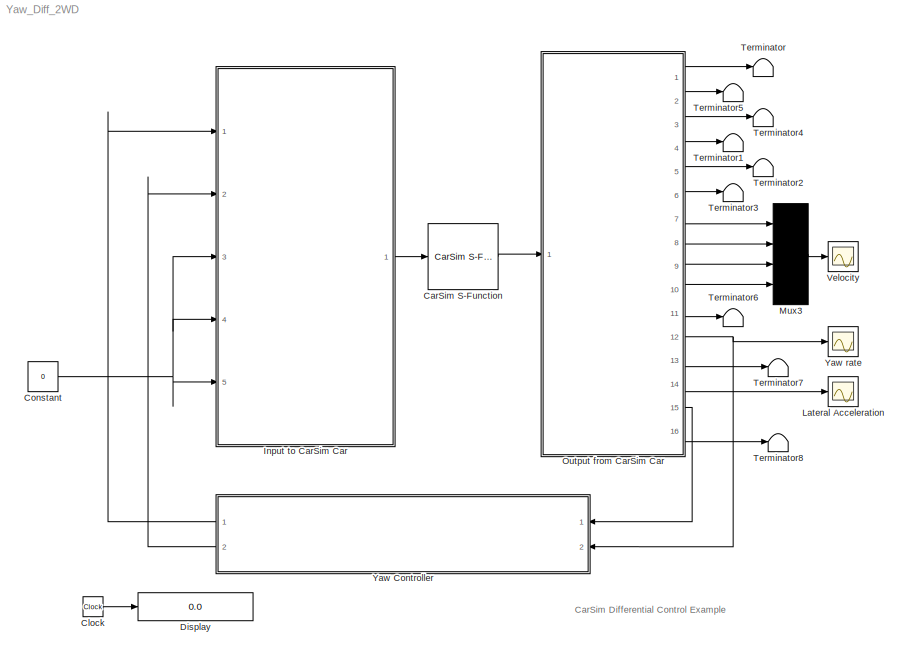
MODEL Yaw_Diff_2WD
KIND model
BLOCK [Reference] CarSim S-Function  REF=Solver_SF/CarSim S-Function
  Ports = [1, 1]
  Priority = 1
  Run_RTs = off
  SID = 1
  SIMFILE = simfile.sim
  SourceBlock = Solver_SF/CarSim S-Function
  SourceType = Vehicle math model library
  StopMode_ind = Vehicle Model
  vs_state_ind = Run
BLOCK [Clock] Clock
  SID = 2
BLOCK [Constant] Constant
  SID = 3
  Value = 0
BLOCK [Display] Display
  Decimation = 100
  Format = bank
  Ports = [1]
  SID = 4
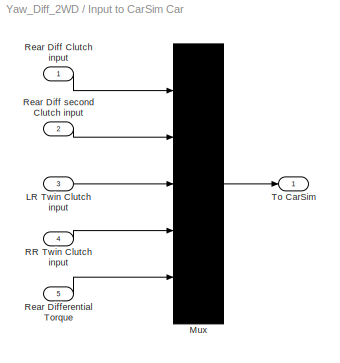
BLOCK [SubSystem] Input to CarSim Car
  FunctionWithSeparateData = off
  MaskHideContents = off
  MinAlgLoopOccurrences = off
  Opaque = off
  Ports = [5, 1]
  PropExecContextOutsideSubsystem = off
  RTWSystemCode = Auto
  RequestExecContextInheritance = off
  SID = 5
  Variant = off
BLOCK [Inport] Input to CarSim Car/LR Twin Clutch input
  IconDisplay = Port number
  Port = 3
  SID = 14
BLOCK [Mux] Input to CarSim Car/Mux
  Inputs = 5
  Ports = [5, 1]
  SID = 19
BLOCK [Inport] Input to CarSim Car/RR Twin Clutch input
  IconDisplay = Port number
  Port = 4
  SID = 15
BLOCK [Inport] Input to CarSim Car/Rear Diff Clutch input
  IconDisplay = Port number
  SID = 10
BLOCK [Inport] Input to CarSim Car/Rear Diff second Clutch input
  IconDisplay = Port number
  Port = 2
  SID = 11
BLOCK [Inport] Input to CarSim Car/Rear Differential Torque
  IconDisplay = Port number
  Port = 5
  SID = 18
BLOCK [Outport] Input to CarSim Car/To CarSim
  IconDisplay = Port number
  SID = 20
BLOCK [Scope] Lateral Acceleration
  DataFormat = Array
  Decimation = 1
  Grid = on
  LimitDataPoints = off
  MaxDataPoints = 5000
  NumInputPorts = 1
  Ports = [1]
  SID = 21
  SampleInput = off
  SampleTime = -1
  SaveName = ScopeData
  SaveToWorkspace = off
  TickLabels = on
  TimeRange = auto
  YMax = 1
  YMin = -0.5
  ZoomMode = on
BLOCK [Mux] Mux3
  Ports = [4, 1]
  SID = 24
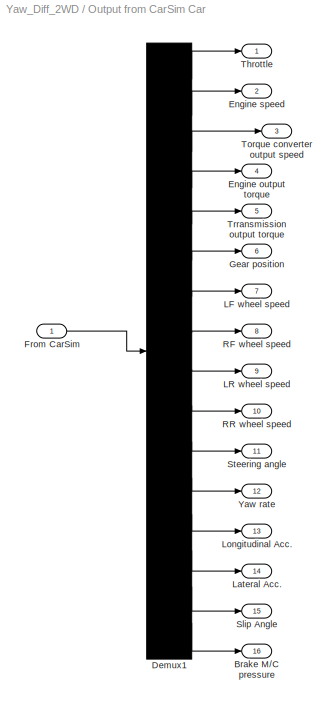
BLOCK [SubSystem] Output from CarSim Car
  FunctionWithSeparateData = off
  MaskHideContents = off
  MinAlgLoopOccurrences = off
  Opaque = off
  Ports = [1, 16]
  PropExecContextOutsideSubsystem = off
  RTWSystemCode = Auto
  RequestExecContextInheritance = off
  SID = 25
  Variant = off
BLOCK [Outport] Output from CarSim Car/Brake M//C pressure
  IconDisplay = Port number
  Port = 16
  SID = 43
BLOCK [Demux] Output from CarSim Car/Demux1
  Outputs = 16
  Ports = [1, 16]
  SID = 27
BLOCK [Outport] Output from CarSim Car/Engine output torque
  IconDisplay = Port number
  Port = 4
  SID = 31
BLOCK [Outport] Output from CarSim Car/Engine speed
  IconDisplay = Port number
  Port = 2
  SID = 29
BLOCK [Inport] Output from CarSim Car/From CarSim
  IconDisplay = Port number
  SID = 26
BLOCK [Outport] Output from CarSim Car/Gear position
  IconDisplay = Port number
  Port = 6
  SID = 33
BLOCK [Outport] Output from CarSim Car/LF wheel speed
  IconDisplay = Port number
  Port = 7
  SID = 34
BLOCK [Outport] Output from CarSim Car/LR wheel speed
  IconDisplay = Port number
  Port = 9
  SID = 36
BLOCK [Outport] Output from CarSim Car/Lateral Acc.
  IconDisplay = Port number
  Port = 14
  SID = 41
BLOCK [Outport] Output from CarSim Car/Longitudinal Acc.
  IconDisplay = Port number
  Port = 13
  SID = 40
BLOCK [Outport] Output from CarSim Car/RF wheel speed
  IconDisplay = Port number
  Port = 8
  SID = 35
BLOCK [Outport] Output from CarSim Car/RR wheel speed
  IconDisplay = Port number
  Port = 10
  SID = 37
BLOCK [Outport] Output from CarSim Car/Slip Angle
  IconDisplay = Port number
  Port = 15
  SID = 42
BLOCK [Outport] Output from CarSim Car/Steering angle
  IconDisplay = Port number
  Port = 11
  SID = 38
BLOCK [Outport] Output from CarSim Car/Throttle
  IconDisplay = Port number
  SID = 28
BLOCK [Outport] Output from CarSim Car/Torque converter output speed
  IconDisplay = Port number
  Port = 3
  SID = 30
BLOCK [Outport] Output from CarSim Car/Trransmission output torque
  IconDisplay = Port number
  Port = 5
  SID = 32
BLOCK [Outport] Output from CarSim Car/Yaw rate
  IconDisplay = Port number
  Port = 12
  SID = 39
BLOCK [Terminator] Terminator
  SID = 44
BLOCK [Terminator] Terminator1
  SID = 45
BLOCK [Terminator] Terminator2
  SID = 46
BLOCK [Terminator] Terminator3
  SID = 47
BLOCK [Terminator] Terminator4
  SID = 48
BLOCK [Terminator] Terminator5
  SID = 49
BLOCK [Terminator] Terminator6
  SID = 50
BLOCK [Terminator] Terminator7
  SID = 51
BLOCK [Terminator] Terminator8
  SID = 52
BLOCK [Scope] Velocity
  DataFormat = Array
  Decimation = 1
  Grid = on
  LimitDataPoints = off
  MaxDataPoints = 5000
  NumInputPorts = 1
  Ports = [1]
  SID = 53
  SampleInput = off
  SampleTime = -1
  SaveName = ScopeData
  SaveToWorkspace = off
  TickLabels = on
  TimeRange = auto
  YMax = 160
  YMin = 80
  ZoomMode = on
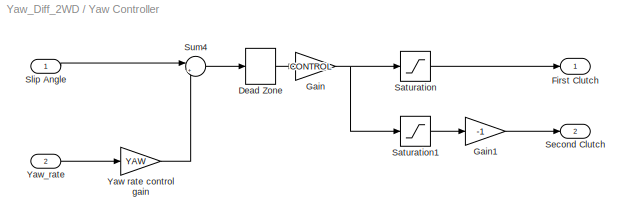
BLOCK [SubSystem] Yaw Controller
  FunctionWithSeparateData = off
  MaskCallbackString = |
  MaskEnableString = on,on
  MaskHideContents = off
  MaskIconFrame = on
  MaskIconOpaque = on
  MaskIconRotate = none
  MaskIconUnits = autoscale
  MaskPortRotate = default
  MaskPromptString = Yaw Control Gain (-)|Control Gain (-)
  MaskStyleString = edit,edit
  MaskToolTipString = on,on
  MaskTunableValueString = on,on
  MaskValueString = 0.06|0.72
  MaskVariables = YAW=@1;CONTROL=@2;
  MaskVisibilityString = on,on
  MinAlgLoopOccurrences = off
  Opaque = off
  Ports = [2, 2]
  PropExecContextOutsideSubsystem = off
  RTWSystemCode = Auto
  RequestExecContextInheritance = off
  SID = 54
  Variant = off
BLOCK [DeadZone] Yaw Controller/Dead Zone
  SID = 57
BLOCK [Outport] Yaw Controller/First Clutch
  IconDisplay = Port number
  SID = 64
BLOCK [Gain] Yaw Controller/Gain
  Gain = CONTROL
  SID = 58
BLOCK [Gain] Yaw Controller/Gain1
  Gain = -1
  SID = 59
BLOCK [Saturate] Yaw Controller/Saturation
  InputPortMap = u0
  LowerLimit = 0
  Ports = [1, 1]
  SID = 60
  UpperLimit = 1
BLOCK [Saturate] Yaw Controller/Saturation1
  InputPortMap = u0
  LowerLimit = -1
  Ports = [1, 1]
  SID = 61
  UpperLimit = 0
BLOCK [Outport] Yaw Controller/Second Clutch
  IconDisplay = Port number
  Port = 2
  SID = 65
BLOCK [Inport] Yaw Controller/Slip Angle
  IconDisplay = Port number
  SID = 55
BLOCK [Sum] Yaw Controller/Sum4
  IconShape = round
  Inputs = |+-
  Ports = [2, 1]
  SID = 62
BLOCK [Gain] Yaw Controller/Yaw rate control gain
  Gain = YAW
  SID = 63
BLOCK [Inport] Yaw Controller/Yaw_rate
  IconDisplay = Port number
  Port = 2
  SID = 56
BLOCK [Scope] Yaw rate
  DataFormat = Array
  Decimation = 1
  Grid = on
  LimitDataPoints = off
  MaxDataPoints = 5000
  NumInputPorts = 1
  Ports = [1]
  SID = 66
  SampleInput = off
  SampleTime = -1
  SaveName = ScopeData
  SaveToWorkspace = off
  TickLabels = on
  TimeRange = auto
  YMax = 20
  YMin = -20
  ZoomMode = on
ANNOTATION (root): CarSim Differential Control Example
LINE CarSim S-Function:1 -> Output from CarSim Car:1
LINE Clock:1 -> Display:1
NET Constant:1 -> Input to CarSim Car:3, Input to CarSim Car:4, Input to CarSim Car:5
LINE Input to CarSim Car/LR Twin Clutch input:1 -> Input to CarSim Car/Mux:3
LINE Input to CarSim Car/Mux:1 -> Input to CarSim Car/To CarSim:1
LINE Input to CarSim Car/RR Twin Clutch input:1 -> Input to CarSim Car/Mux:4
LINE Input to CarSim Car/Rear Diff Clutch input:1 -> Input to CarSim Car/Mux:1
LINE Input to CarSim Car/Rear Diff second Clutch input:1 -> Input to CarSim Car/Mux:2
LINE Input to CarSim Car/Rear Differential Torque:1 -> Input to CarSim Car/Mux:5
LINE Input to CarSim Car:1 -> CarSim S-Function:1
LINE Mux3:1 -> Velocity:1
LINE Output from CarSim Car/Demux1:1 -> Output from CarSim Car/Throttle:1
LINE Output from CarSim Car/Demux1:10 -> Output from CarSim Car/RR wheel speed:1
LINE Output from CarSim Car/Demux1:11 -> Output from CarSim Car/Steering angle:1
LINE Output from CarSim Car/Demux1:12 -> Output from CarSim Car/Yaw rate:1
LINE Output from CarSim Car/Demux1:13 -> Output from CarSim Car/Longitudinal Acc.:1
LINE Output from CarSim Car/Demux1:14 -> Output from CarSim Car/Lateral Acc.:1
LINE Output from CarSim Car/Demux1:15 -> Output from CarSim Car/Slip Angle:1
LINE Output from CarSim Car/Demux1:16 -> Output from CarSim Car/Brake M//C pressure:1
LINE Output from CarSim Car/Demux1:2 -> Output from CarSim Car/Engine speed:1
LINE Output from CarSim Car/Demux1:3 -> Output from CarSim Car/Torque converter output speed:1
LINE Output from CarSim Car/Demux1:4 -> Output from CarSim Car/Engine output torque:1
LINE Output from CarSim Car/Demux1:5 -> Output from CarSim Car/Trransmission output torque:1
LINE Output from CarSim Car/Demux1:6 -> Output from CarSim Car/Gear position:1
LINE Output from CarSim Car/Demux1:7 -> Output from CarSim Car/LF wheel speed:1
LINE Output from CarSim Car/Demux1:8 -> Output from CarSim Car/RF wheel speed:1
LINE Output from CarSim Car/Demux1:9 -> Output from CarSim Car/LR wheel speed:1
LINE Output from CarSim Car/From CarSim:1 -> Output from CarSim Car/Demux1:1
LINE Output from CarSim Car:1 -> Terminator:1
LINE Output from CarSim Car:10 -> Mux3:4
LINE Output from CarSim Car:11 -> Terminator6:1
NET Output from CarSim Car:12 -> Yaw Controller:2, Yaw rate:1
LINE Output from CarSim Car:13 -> Terminator7:1
LINE Output from CarSim Car:14 -> Lateral Acceleration:1
LINE Output from CarSim Car:15 -> Yaw Controller:1
LINE Output from CarSim Car:16 -> Terminator8:1
LINE Output from CarSim Car:2 -> Terminator5:1
LINE Output from CarSim Car:3 -> Terminator4:1
LINE Output from CarSim Car:4 -> Terminator1:1
LINE Output from CarSim Car:5 -> Terminator2:1
LINE Output from CarSim Car:6 -> Terminator3:1
LINE Output from CarSim Car:7 -> Mux3:1
LINE Output from CarSim Car:8 -> Mux3:2
LINE Output from CarSim Car:9 -> Mux3:3
LINE Yaw Controller/Dead Zone:1 -> Yaw Controller/Gain:1
LINE Yaw Controller/Gain1:1 -> Yaw Controller/Second Clutch:1
NET Yaw Controller/Gain:1 -> Yaw Controller/Saturation1:1, Yaw Controller/Saturation:1
LINE Yaw Controller/Saturation1:1 -> Yaw Controller/Gain1:1
LINE Yaw Controller/Saturation:1 -> Yaw Controller/First Clutch:1
LINE Yaw Controller/Slip Angle:1 -> Yaw Controller/Sum4:1
LINE Yaw Controller/Sum4:1 -> Yaw Controller/Dead Zone:1
LINE Yaw Controller/Yaw rate control gain:1 -> Yaw Controller/Sum4:2
LINE Yaw Controller/Yaw_rate:1 -> Yaw Controller/Yaw rate control gain:1
LINE Yaw Controller:1 -> Input to CarSim Car:1
LINE Yaw Controller:2 -> Input to CarSim Car:2
note: NET lines group one-source signal fan-out (src -> all destinations, sorted); 1:1 wires keep LINE
